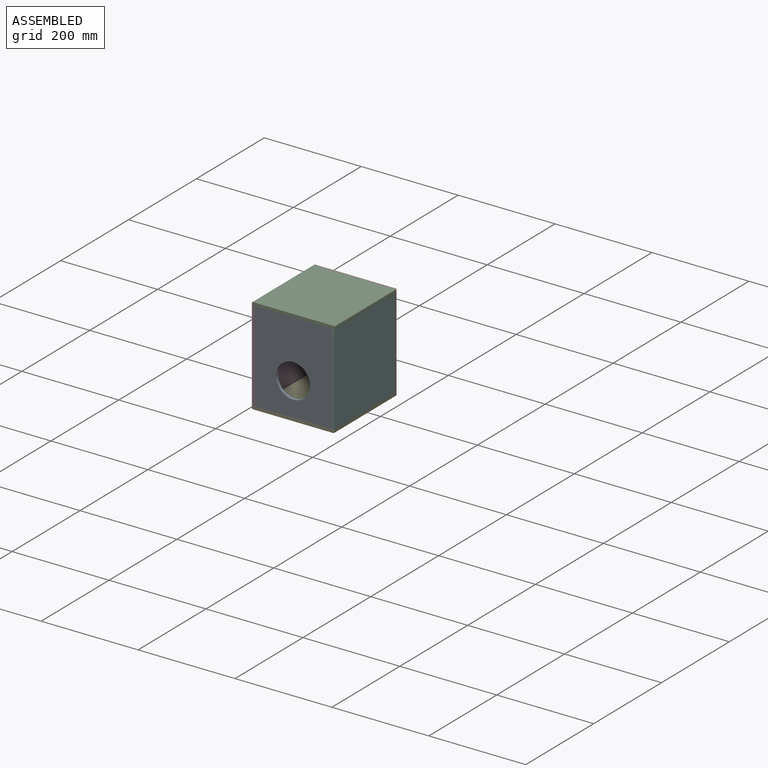
[diagram: assembled view]
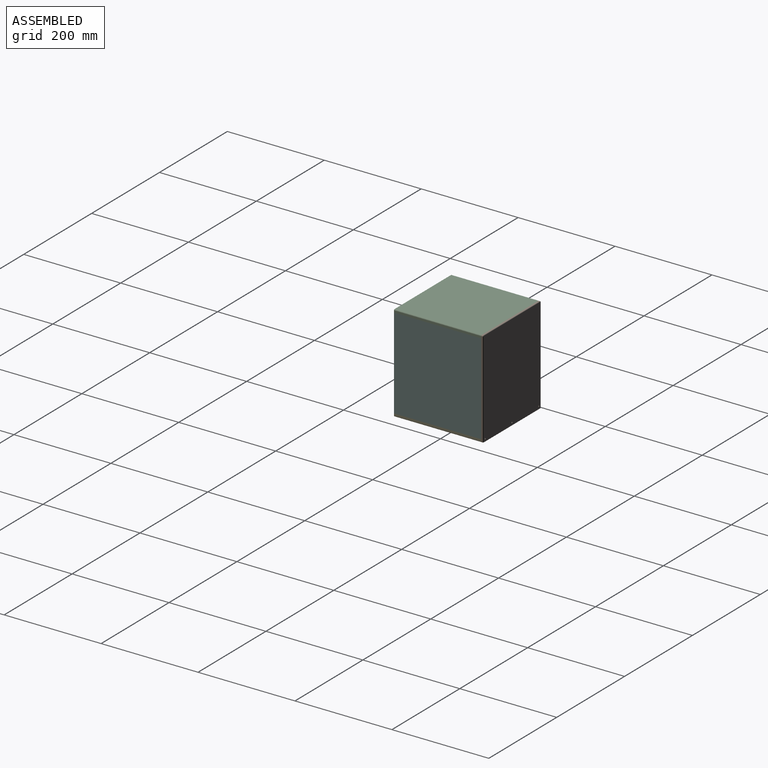
[diagram: assembled view, second angle]
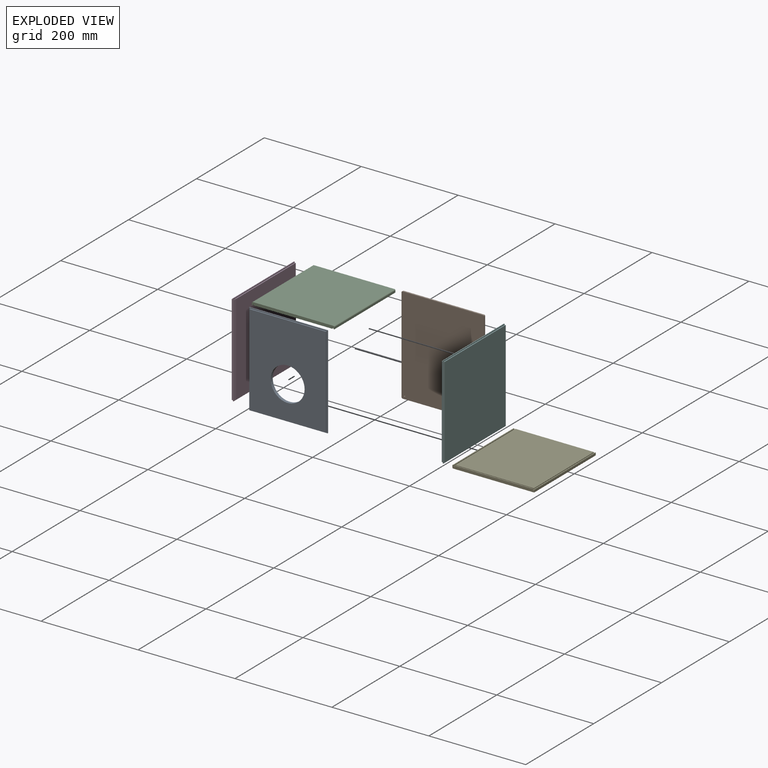
[diagram: exploded view]
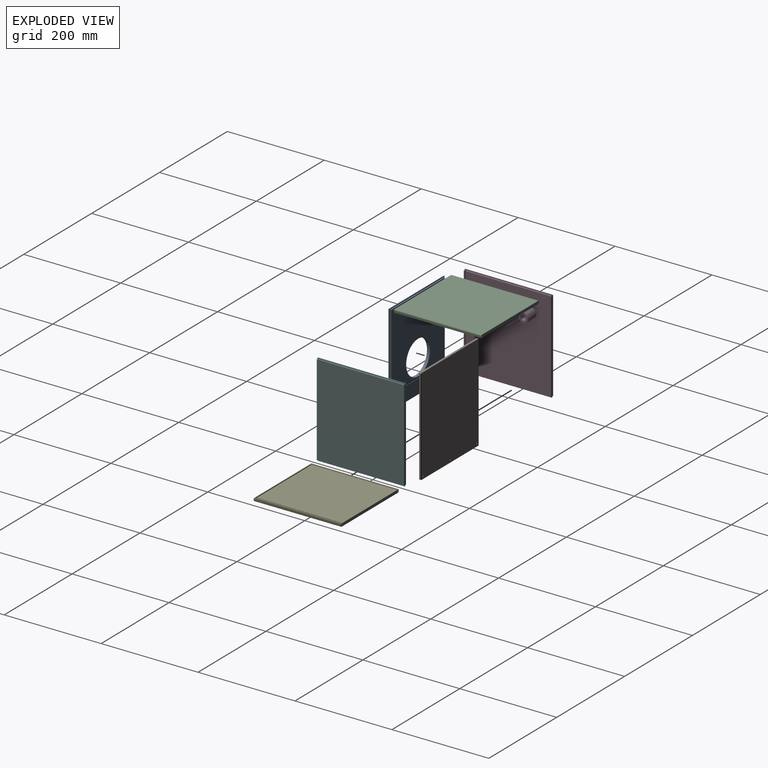
[diagram: exploded view, second angle]
ASSEMBLY  parts=6 mates=7
PART A: 17 faces, bbox 6x161.8x191.8 mm
  f0: plane 157.8x2.25mm, normal (0,0,-1), area 355.1mm2, adj f3,f4,f5,f12
  f1: plane 157.8x2.25mm, normal (0,0,1), area 355.1mm2, adj f3,f4,f5,f12
  f2: plane 157.8x2.25mm, normal (0,0,1), area 355mm2, adj f7,f8,f9,f10
  f3: plane 187.8x157.8mm, normal (1,0,0), area 25786.4mm2, adj f0,f1,f4,f12,f15
  f4: plane 187.8x2.25mm, normal (0,1,0), area 422.6mm2, adj f0,f1,f3,f5
  f5: plane 191.8x161.8mm, normal (1,0,0), area 1398.4mm2, adj f0,f1,f4,f6,f11,f12,f14,f16
  f6: plane 191.8x1.5mm, normal (0,1,0), area 287.7mm2, adj f5,f7,f14,f16
  f7: plane 191.8x161.8mm, normal (-1,0,0), area 1398.4mm2, adj f2,f6,f8,f10,f11,f13,f14,f16
  f8: plane 187.8x2.25mm, normal (0,1,0), area 422.6mm2, adj f2,f7,f9,f13
  f9: plane 187.8x157.8mm, normal (-1,0,0), area 25786.4mm2, adj f2,f8,f10,f13,f15
  f10: plane 187.8x2.25mm, normal (0,-1,0), area 422.6mm2, adj f2,f7,f9,f13
  f11: plane 191.8x1.5mm, normal (0,-1,0), area 287.7mm2, adj f5,f7,f14,f16
  f12: plane 187.8x2.25mm, normal (0,-1,0), area 422.6mm2, adj f0,f1,f3,f5
  f13: plane 157.8x2.25mm, normal (0,0,-1), area 355mm2, adj f7,f8,f9,f10
  f14: plane 161.8x1.5mm, normal (0,0,1), area 242.7mm2, adj f5,f6,f7,f11
  f15: cylinder r=35mm len=70mm, axis (1,0,0), area 1319.5mm2, adj f3,f9
  f16: plane 161.8x1.5mm, normal (0,0,-1), area 242.7mm2, adj f5,f6,f7,f11
PART B: 21 faces, bbox 170.3x4x200.3 mm
  f0: plane 166x3mm, normal (0,0,-1), area 498mm2, adj f1,f9,f12,f20
  f1: cylinder r=2mm len=3mm, axis (0,1,0), area 9.4mm2, adj f0,f2,f12,f18
  f2: plane 196x3mm, normal (1,0,0), area 588mm2, adj f1,f3,f12,f16
  f3: cylinder r=2mm len=3mm, axis (0,1,0), area 9.4mm2, adj f2,f4,f12,f14
  f4: plane 166x3mm, normal (0,0,1), area 498mm2, adj f3,f5,f12,f13
  f5: cylinder r=2mm len=3mm, axis (0,1,0), area 9.4mm2, adj f4,f6,f12,f15
  f6: plane 196x3mm, normal (-1,0,0), area 588mm2, adj f5,f9,f12,f17
  f7: cylinder r=1.25mm len=4mm, axis (0,1,0), area 31.4mm2, adj f11,f12
  f8: cylinder r=1.25mm len=4mm, axis (0,1,0), area 31.4mm2, adj f11,f12
  f9: cylinder r=2mm len=3mm, axis (0,1,0), area 9.4mm2, adj f0,f6,f12,f19
  f10: cylinder r=1.25mm len=4mm, axis (0,1,0), area 31.4mm2, adj f11,f12
  f11: plane 198x168mm, normal (0,-1,0), area 33248.4mm2, adj f7,f8,f10,f13,f14,f15,f16,f17
  f12: plane 200x170mm, normal (0,1,0), area 33981.8mm2, adj f0,f1,f2,f3,f4,f5,f6,f7
  f13: cylinder r=1mm len=166mm, axis (1,0,0), area 260.8mm2, adj f4,f11,f14,f15
  f14: torus R=1mm, axis (0,-1,0), area 4mm2, adj f3,f11,f13,f16
  f15: torus R=1mm, axis (0,-1,0), area 4mm2, adj f5,f11,f13,f17
  f16: cylinder r=1mm len=196mm, axis (0,0,-1), area 307.9mm2, adj f2,f11,f14,f18
  f17: cylinder r=1mm len=196mm, axis (0,0,1), area 307.9mm2, adj f6,f11,f15,f19
  f18: torus R=1mm, axis (0,-1,0), area 4mm2, adj f1,f11,f16,f20
  f19: torus R=1mm, axis (0,-1,0), area 4mm2, adj f9,f11,f17,f20
  f20: cylinder r=1mm len=166mm, axis (-1,0,0), area 260.8mm2, adj f0,f11,f18,f19
PART C: 20 faces, bbox 170x6x180 mm
  f0: plane 176.5x162mm, normal (0,-1,0), area 28593mm2, adj f1,f2,f15,f19
  f1: plane 180x2.25mm, normal (-1,0,0), area 401mm2, adj f0,f4,f5,f15,f16,f17,f18,f19
  f2: plane 180x2.25mm, normal (1,0,0), area 401mm2, adj f0,f5,f6,f15,f16,f17,f18,f19
  f3: plane 180x2.25mm, normal (1,0,0), area 405mm2, adj f4,f14,f15,f16
  f4: plane 180x2mm, normal (0,-1,0), area 360mm2, adj f1,f3,f15,f16
  f5: plane 162x1.5mm, normal (0,-1,0), area 243mm2, adj f1,f2,f16,f17
  f6: plane 180x2mm, normal (0,-1,0), area 360mm2, adj f2,f7,f15,f16
  f7: plane 180x2.25mm, normal (-1,0,0), area 405mm2, adj f6,f8,f15,f16
  f8: plane 180x2mm, normal (0,-1,0), area 360mm2, adj f7,f9,f15,f16
  f9: plane 180x4mm, normal (1,0,0), area 720mm2, adj f8,f10,f15,f16
  f10: cylinder r=2mm len=180mm, axis (0,0,-1), area 565.5mm2, adj f9,f11,f15,f16
  f11: plane 180x166mm, normal (0,1,0), area 29880mm2, adj f10,f12,f15,f16
  f12: cylinder r=2mm len=180mm, axis (0,0,-1), area 565.5mm2, adj f11,f13,f15,f16
  f13: plane 180x4mm, normal (-1,0,0), area 720mm2, adj f12,f14,f15,f16
  f14: plane 180x2mm, normal (0,-1,0), area 360mm2, adj f3,f13,f15,f16
  f15: plane 170x6mm, normal (0,0,1), area 1009.3mm2, adj f0,f1,f2,f3,f4,f6,f7,f8
  f16: plane 170x6mm, normal (0,0,-1), area 1009.3mm2, adj f1,f2,f3,f4,f5,f6,f7,f8
  f17: plane 162x2mm, normal (0,0,1), area 324mm2, adj f1,f2,f5,f18
  f18: plane 162x2mm, normal (0,-1,0), area 324mm2, adj f1,f2,f17,f19
  f19: plane 162x2mm, normal (0,0,-1), area 324mm2, adj f0,f1,f2,f18
PART D: 22 faces, bbox 31x192x180 mm
  f0: plane 188x2mm, normal (1,0,0), area 376mm2, adj f1,f2,f14,f16
  f1: plane 2.25x2mm, normal (0,1,0), area 4.5mm2, adj f0,f5,f14,f16
  f2: plane 2.25x2mm, normal (0,-1,0), area 4.5mm2, adj f0,f5,f14,f16
  f3: plane 188x176mm, normal (1,0,0), area 32776.8mm2, adj f4,f13,f15,f17,f19
  f4: plane 176x2.25mm, normal (0,1,0), area 396mm2, adj f3,f5,f15,f17
  f5: plane 192x180mm, normal (1,0,0), area 1096mm2, adj f1,f2,f4,f6,f12,f13,f14,f15
  f6: plane 180x1.5mm, normal (0,1,0), area 270mm2, adj f5,f7,f14,f15
  f7: plane 180x2mm, normal (-1,0,0), area 360mm2, adj f6,f8,f14,f15
  f8: plane 180x2.25mm, normal (0,1,0), area 405mm2, adj f7,f9,f14,f15
  f9: plane 188x180mm, normal (-1,0,0), area 33840mm2, adj f8,f10,f14,f15
  f10: plane 180x2.25mm, normal (0,-1,0), area 405mm2, adj f9,f11,f14,f15
  f11: plane 180x2mm, normal (-1,0,0), area 360mm2, adj f10,f12,f14,f15
  f12: plane 180x1.5mm, normal (0,-1,0), area 270mm2, adj f5,f11,f14,f15
  f13: plane 176x2.25mm, normal (0,-1,0), area 396mm2, adj f3,f5,f15,f17
  f14: plane 192x6mm, normal (0,0,1), area 1134mm2, adj f0,f1,f2,f5,f6,f7,f8,f9
  f15: plane 192x6mm, normal (0,0,-1), area 1134mm2, adj f3,f4,f5,f6,f7,f8,f9,f10
  f16: plane 188x2.25mm, normal (0,0,-1), area 423mm2, adj f0,f1,f2,f5
  f17: plane 188x2.25mm, normal (0,0,1), area 423mm2, adj f3,f4,f5,f13
  f18: cylinder r=5.17mm len=25mm, axis (-1,0,0), area 811.7mm2, adj f20,f21
  f19: cylinder r=9.95mm len=25mm, axis (-1,0,0), area 1563.3mm2, adj f3,f20
  f20: plane 19.9x19.9mm, normal (1,0,0), area 227.3mm2, adj f18,f19
  f21: plane 10.34x10.34mm, normal (1,0,0), area 83.9mm2, adj f18
PART E: same geometry as C
PART F: 22 faces, bbox 31x192x180 mm
  f0: plane 188x2mm, normal (1,0,0), area 376mm2, adj f1,f2,f14,f16
  f1: plane 2.25x2mm, normal (0,1,0), area 4.5mm2, adj f0,f5,f14,f16
  f2: plane 2.25x2mm, normal (0,-1,0), area 4.5mm2, adj f0,f5,f14,f16
  f3: plane 188x176mm, normal (1,0,0), area 32776.8mm2, adj f4,f13,f15,f17,f19
  f4: plane 176x2.25mm, normal (0,1,0), area 396mm2, adj f3,f5,f15,f17
  f5: plane 192x180mm, normal (1,0,0), area 1096mm2, adj f1,f2,f4,f6,f12,f13,f14,f15
  f6: plane 180x1.5mm, normal (0,1,0), area 270mm2, adj f5,f7,f14,f15
  f7: plane 180x2mm, normal (-1,0,0), area 360mm2, adj f6,f8,f14,f15
  f8: plane 180x2.25mm, normal (0,1,0), area 405mm2, adj f7,f9,f14,f15
  f9: plane 188x180mm, normal (-1,0,0), area 33840mm2, adj f8,f10,f14,f15
  f10: plane 180x2.25mm, normal (0,-1,0), area 405mm2, adj f9,f11,f14,f15
  f11: plane 180x2mm, normal (-1,0,0), area 360mm2, adj f10,f12,f14,f15
  f12: plane 180x1.5mm, normal (0,-1,0), area 270mm2, adj f5,f11,f14,f15
  f13: plane 176x2.25mm, normal (0,-1,0), area 396mm2, adj f3,f5,f15,f17
  f14: plane 192x6mm, normal (0,0,1), area 1134mm2, adj f0,f1,f2,f5,f6,f7,f8,f9
  f15: plane 192x6mm, normal (0,0,-1), area 1134mm2, adj f3,f4,f5,f6,f7,f8,f9,f10
  f16: plane 188x2.25mm, normal (0,0,-1), area 423mm2, adj f0,f1,f2,f5
  f17: plane 188x2.25mm, normal (0,0,1), area 423mm2, adj f3,f4,f5,f13
  f18: cylinder r=5.17mm len=25mm, axis (-1,0,0), area 811.7mm2, adj f20,f21
  f19: cylinder r=9.95mm len=25mm, axis (-1,0,0), area 1563.3mm2, adj f3,f20
  f20: plane 19.9x19.9mm, normal (1,0,0), area 227.3mm2, adj f18,f19
  f21: plane 10.34x10.34mm, normal (1,0,0), area 83.9mm2, adj f18
PLACE A rot(axis=(0,0,-1),90deg) t=(-304.01,-106.01,-193.59)mm
PLACE B rot(axis=(0,0,1),180deg) t=(-303.91,70.99,-193.69)mm
PLACE C rot(axis=(0,0.71,0.71),180deg) t=(-303.91,-109.01,-99.69)mm
PLACE D rot(axis=(1,0,0),90deg) t=(-385.91,-19.01,-193.69)mm
PLACE E rot(axis=(-1,0,0),90deg) t=(-303.91,-109.01,-287.69)mm
PLACE F rot(axis=(0,0.71,-0.71),180deg) t=(-221.91,-19.01,-193.69)mm
MATE planar A.f12 <-> D.f0  axis (-1,0,0) through (-382.91,-109.01,-99.69)mm
MATE planar D.f9 <-> C.f9  axis (-1,0,0) through (-388.91,-109.01,-99.69)mm
MATE planar C.f16 <-> D.f14  axis (0,-1,0) through (-388.91,-109.01,-99.69)mm
MATE planar F.f9 <-> C.f13  axis (1,0,0) through (-218.91,-109.01,-99.69)mm
MATE planar B.f2 <-> C.f9  axis (-1,0,0) through (-388.91,70.99,-95.69)mm
MATE planar E.f13 <-> D.f9  axis (-1,0,0) through (-388.91,-109.01,-287.69)mm
MATE planar A.f3 <-> C.f16  axis (0,-1,0) through (-304.01,-109.01,-99.69)mm
